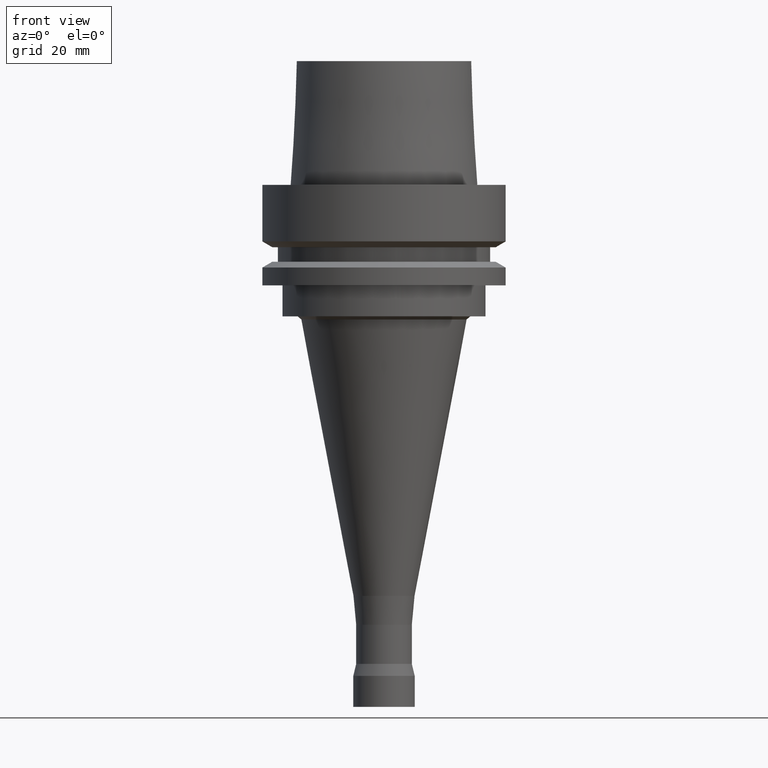
[diagram: clean part render]
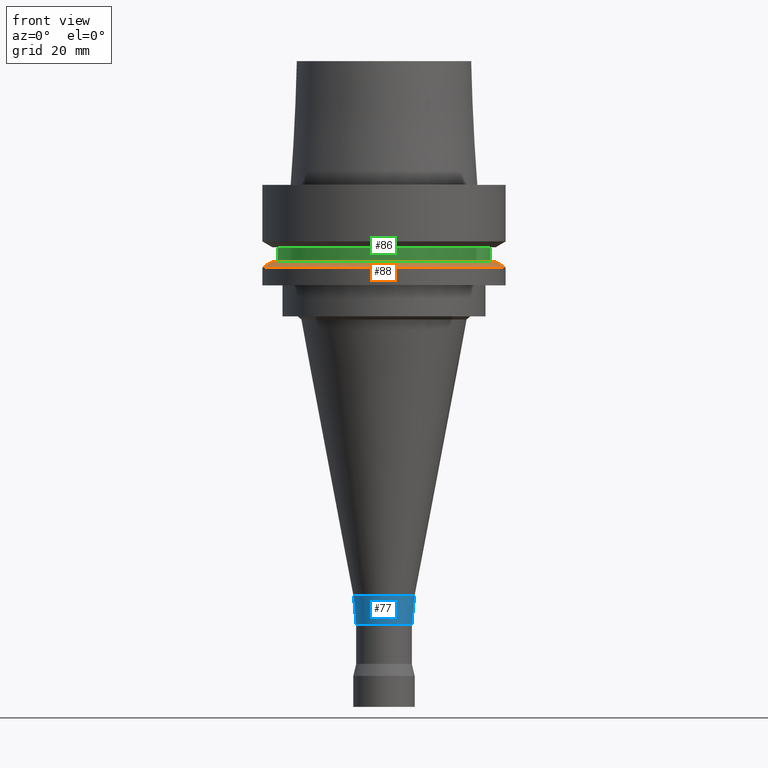
[diagram: same view with three faces highlighted in distinct colors, each labeled with its STEP entity id]
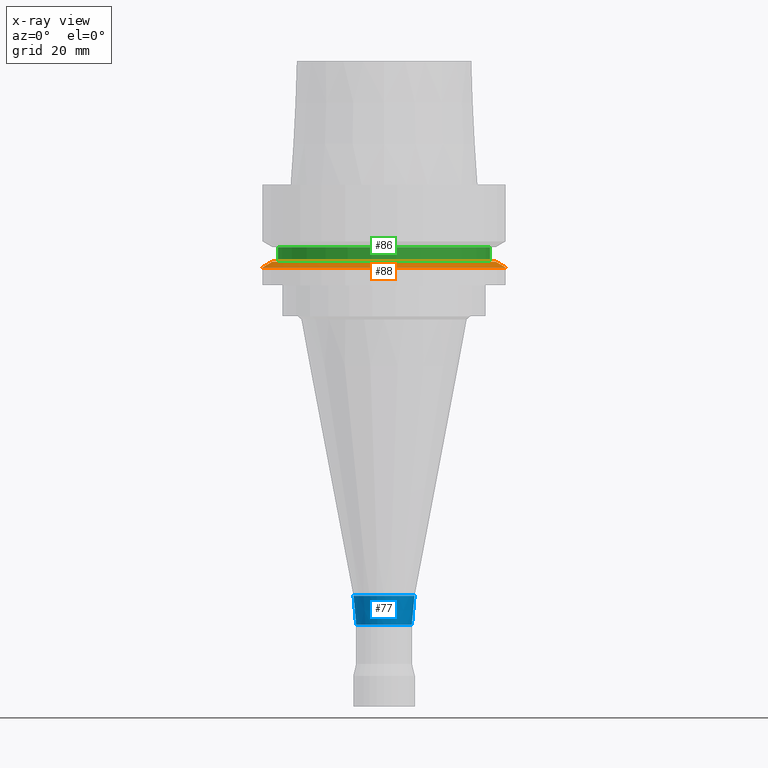
[diagram: x-ray of the same camera — body ghosted, the three highlighted faces saturated]
A machine part, front view with three faces highlighted in distinct colors.
The next image is the same camera in x-ray (body ghosted, the three faces saturated) — at least one of them is partly hidden behind the body in this view.
Their STEP definitions:

[orange] entity #88 — the highlighted conical surface has half-angle 60 deg.
#88=ADVANCED_FACE('',(#133,#134),#135,.T.);
#133=FACE_BOUND('',#191,.T.);
#134=FACE_BOUND('',#192,.T.);
#135=CONICAL_SURFACE('',#193,30.19879763,1.04719755326565);
#191=EDGE_LOOP('',(#275));
#192=EDGE_LOOP('',(#276));
#193=AXIS2_PLACEMENT_3D('',#277,#278,#279);
#275=ORIENTED_EDGE('',*,*,#323,.F.);
#276=ORIENTED_EDGE('',*,*,#322,.T.);
#277=CARTESIAN_POINT('',(1.26299352357262E-015,2.52598704714523E-015,-20.626249535));
#278=DIRECTION('',(6.12323399573677E-017,1.22464679914735E-016,-1.0));
#279=DIRECTION('',(-1.23259516440783E-032,1.0,1.22464679914735E-016));
#322=EDGE_CURVE('',#353,#353,#354,.T.);
#323=EDGE_CURVE('',#355,#355,#356,.T.);
#353=VERTEX_POINT('',#391);
#354=CIRCLE('',#392,28.89759526);
#355=VERTEX_POINT('',#393);
#356=CIRCLE('',#394,31.5);
#391=CARTESIAN_POINT('',(1.21699275665268E-015,28.89759526,-19.875));
#392=AXIS2_PLACEMENT_3D('',#441,#442,#443);
#393=CARTESIAN_POINT('',(1.30899429049255E-015,31.5,-21.37749907));
#394=AXIS2_PLACEMENT_3D('',#444,#445,#446);
#441=CARTESIAN_POINT('',(1.21699275665268E-015,2.43398551330536E-015,-19.875));
#442=DIRECTION('',(6.12323399573677E-017,1.22464679914735E-016,-1.0));
#443=DIRECTION('',(-1.23259516440783E-032,1.0,1.22464679914735E-016));
#444=CARTESIAN_POINT('',(1.30899429049255E-015,2.6179885809851E-015,-21.37749907));
#445=DIRECTION('',(6.12323399573677E-017,1.22464679914735E-016,-1.0));
#446=DIRECTION('',(-1.23259516440783E-032,1.0,1.22464679914735E-016));

[blue] entity #77 — the highlighted conical surface has half-angle 5.372 deg.
#77=ADVANCED_FACE('',(#101,#102),#103,.T.);
#101=FACE_BOUND('',#159,.T.);
#102=FACE_BOUND('',#160,.T.);
#103=CONICAL_SURFACE('',#161,7.60065411,0.0937661424706096);
#159=EDGE_LOOP('',(#221));
#160=EDGE_LOOP('',(#222));
#161=AXIS2_PLACEMENT_3D('',#223,#224,#225);
#221=ORIENTED_EDGE('',*,*,#312,.F.);
#222=ORIENTED_EDGE('',*,*,#313,.T.);
#223=CARTESIAN_POINT('',(6.7375766039747E-015,1.34751532079494E-014,-110.03297618));
#224=DIRECTION('',(-6.12323399573677E-017,-1.22464679914735E-016,1.0));
#225=DIRECTION('',(-1.23259516440783E-032,1.0,1.22464679914735E-016));
#312=EDGE_CURVE('',#333,#333,#334,.T.);
#313=EDGE_CURVE('',#335,#335,#336,.T.);
#333=VERTEX_POINT('',#371);
#334=CIRCLE('',#372,7.25);
#335=VERTEX_POINT('',#373);
#336=CIRCLE('',#374,7.95130822);
#371=CARTESIAN_POINT('',(6.96589365018041E-015,7.25000000000001,-113.76167651));
#372=AXIS2_PLACEMENT_3D('',#411,#412,#413);
#373=CARTESIAN_POINT('',(6.50925955776899E-015,7.95130822000001,-106.30427585));
#374=AXIS2_PLACEMENT_3D('',#414,#415,#416);
#411=CARTESIAN_POINT('',(6.96589365018041E-015,1.39317873003608E-014,-113.76167651));
#412=DIRECTION('',(6.12323399573677E-017,1.22464679914735E-016,-1.0));
#413=DIRECTION('',(-1.23259516440783E-032,1.0,1.22464679914735E-016));
#414=CARTESIAN_POINT('',(6.50925955776899E-015,1.3018519115538E-014,-106.30427585));
#415=DIRECTION('',(6.12323399573677E-017,1.22464679914735E-016,-1.0));
#416=DIRECTION('',(-1.23259516440783E-032,1.0,1.22464679914735E-016));

[green] entity #86 — the highlighted cylindrical surface (bore or boss wall) has radius 27.5 mm, axis along (-0, -0, 1).
#86=ADVANCED_FACE('',(#127,#128),#129,.T.);
#127=FACE_BOUND('',#185,.T.);
#128=FACE_BOUND('',#186,.T.);
#129=CYLINDRICAL_SURFACE('',#187,27.5);
#185=EDGE_LOOP('',(#265));
#186=EDGE_LOOP('',(#266));
#187=AXIS2_PLACEMENT_3D('',#267,#268,#269);
#265=ORIENTED_EDGE('',*,*,#321,.F.);
#266=ORIENTED_EDGE('',*,*,#320,.T.);
#267=CARTESIAN_POINT('',(1.10218211923262E-015,2.20436423846524E-015,-18.0));
#268=DIRECTION('',(-6.12323399573677E-017,-1.22464679914735E-016,1.0));
#269=DIRECTION('',(-1.23259516440783E-032,1.0,1.22464679914735E-016));
#320=EDGE_CURVE('',#349,#349,#350,.T.);
#321=EDGE_CURVE('',#351,#351,#352,.T.);
#349=VERTEX_POINT('',#387);
#350=CIRCLE('',#388,27.5);
#351=VERTEX_POINT('',#389);
#352=CIRCLE('',#390,27.5);
#387=CARTESIAN_POINT('',(9.87371481812553E-016,27.5,-16.125));
#388=AXIS2_PLACEMENT_3D('',#435,#436,#437);
#389=CARTESIAN_POINT('',(1.21699275665268E-015,27.5,-19.875));
#390=AXIS2_PLACEMENT_3D('',#438,#439,#440);
#435=CARTESIAN_POINT('',(9.87371481812554E-016,1.97474296362511E-015,-16.125));
#436=DIRECTION('',(6.12323399573677E-017,1.22464679914735E-016,-1.0));
#437=DIRECTION('',(-1.23259516440783E-032,1.0,1.22464679914735E-016));
#438=CARTESIAN_POINT('',(1.21699275665268E-015,2.43398551330536E-015,-19.875));
#439=DIRECTION('',(6.12323399573677E-017,1.22464679914735E-016,-1.0));
#440=DIRECTION('',(-1.23259516440783E-032,1.0,1.22464679914735E-016));